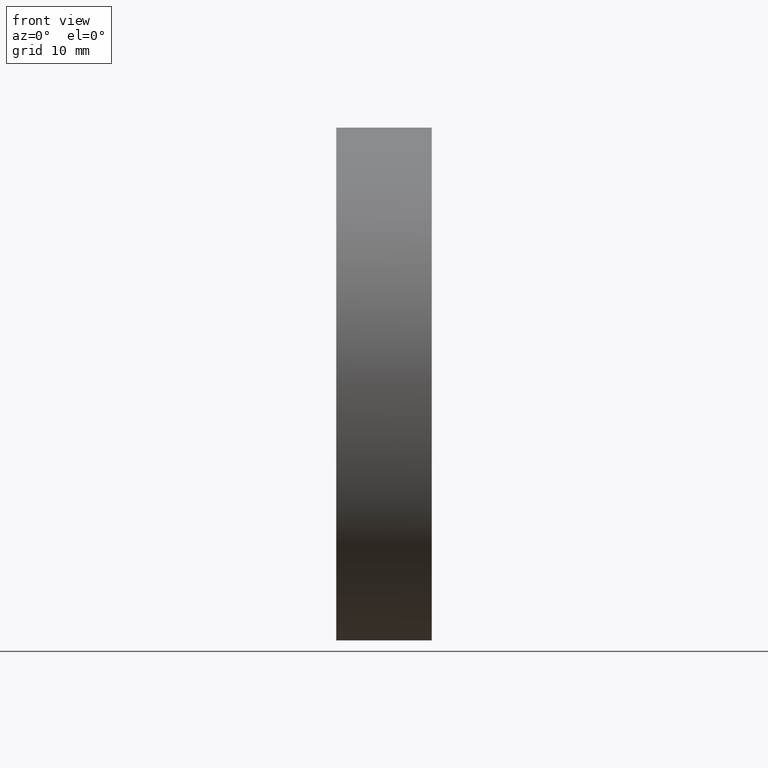
[diagram: clean part render]
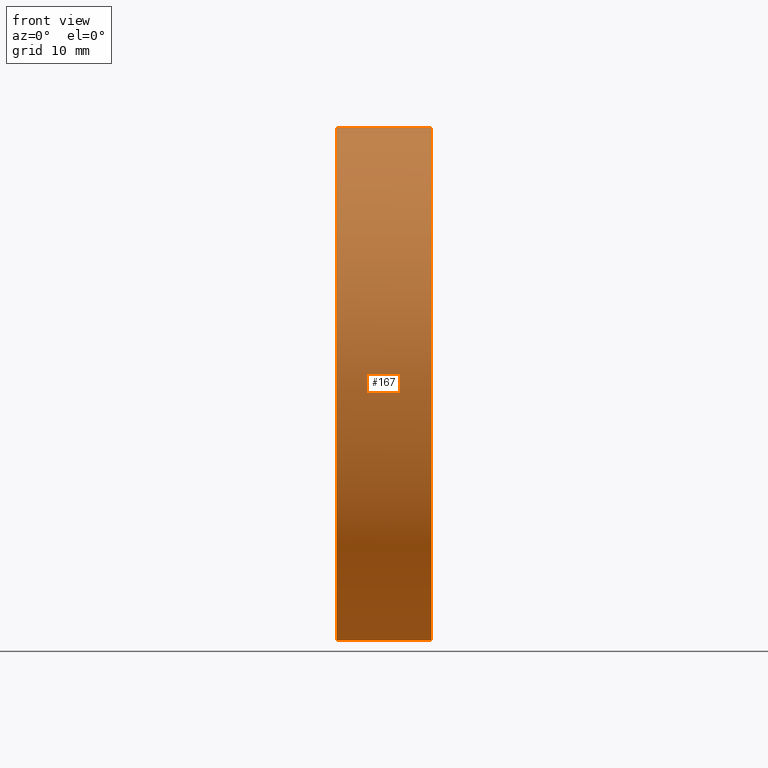
[diagram: same view with one face highlighted and labeled with its STEP entity id]
A machine part, front view. The second image highlights one B-rep face of the part: STEP entity #167.
In plain terms, the highlighted cylindrical surface (partial cylindrical patch) has radius 25 mm, axis along (-1, -0, -0).
Its self-contained STEP definition (entity closure, byte-faithful):
#6 = DIRECTION ( 'NONE',  ( 0.0000000000000000000, 0.0000000000000000000, 1.000000000000000000 ) ) ;
#8 = DIRECTION ( 'NONE',  ( -1.000000000000000000, -0.0000000000000000000, -0.0000000000000000000 ) ) ;
#10 = CARTESIAN_POINT ( 'NONE',  ( 230.1853110698390300, 138.7560422467448700, 0.0000000000000000000 ) ) ;
#12 = AXIS2_PLACEMENT_3D ( 'NONE', #10, #66, #128 ) ;
#14 = AXIS2_PLACEMENT_3D ( 'NONE', #182, #67, #76 ) ;
#26 = VECTOR ( 'NONE', #179, 1000.000000000000000 ) ;
#33 = CARTESIAN_POINT ( 'NONE',  ( 217.9702860043302100, 138.7560422467448700, 24.99999999999998200 ) ) ;
#39 = FACE_OUTER_BOUND ( 'NONE', #121, .T. ) ;
#50 = DIRECTION ( 'NONE',  ( -1.000000000000000000, -0.0000000000000000000, -0.0000000000000000000 ) ) ;
#54 = ORIENTED_EDGE ( 'NONE', *, *, #79, .F. ) ;
#55 = CARTESIAN_POINT ( 'NONE',  ( 217.9702860043302100, 138.7560422467448700, 0.0000000000000000000 ) ) ;
#57 = ORIENTED_EDGE ( 'NONE', *, *, #124, .T. ) ;
#59 = VERTEX_POINT ( 'NONE', #61 ) ;
#60 = CARTESIAN_POINT ( 'NONE',  ( 217.9702860043302100, 138.7560422467448700, -24.99999999999998200 ) ) ;
#61 = CARTESIAN_POINT ( 'NONE',  ( 239.4978588584929200, 138.7560422467448700, -24.99999999999996800 ) ) ;
#63 = AXIS2_PLACEMENT_3D ( 'NONE', #185, #50, #6 ) ;
#64 = CARTESIAN_POINT ( 'NONE',  ( 230.1853110698390300, 138.7560422467448700, -24.99999999999999600 ) ) ;
#66 = DIRECTION ( 'NONE',  ( -1.000000000000000000, -0.0000000000000000000, -0.0000000000000000000 ) ) ;
#67 = DIRECTION ( 'NONE',  ( -1.000000000000000000, -0.0000000000000000000, -0.0000000000000000000 ) ) ;
#76 = DIRECTION ( 'NONE',  ( 0.0000000000000000000, 0.0000000000000000000, 1.000000000000000000 ) ) ;
#79 = EDGE_CURVE ( 'NONE', #59, #110, #162, .T. ) ;
#82 = CIRCLE ( 'NONE', #63, 24.99999999999996800 ) ;
#86 = DIRECTION ( 'NONE',  ( 0.0000000000000000000, 0.0000000000000000000, 1.000000000000000000 ) ) ;
#99 = CARTESIAN_POINT ( 'NONE',  ( 239.4978588584929500, 113.7560422467429100, -3.061616997868377100E-015 ) ) ;
#101 = DIRECTION ( 'NONE',  ( -1.000000000000000000, -0.0000000000000000000, -0.0000000000000000000 ) ) ;
#102 = CIRCLE ( 'NONE', #14, 24.99999999999996800 ) ;
#105 = EDGE_CURVE ( 'NONE', #110, #153, #184, .T. ) ;
#110 = VERTEX_POINT ( 'NONE', #64 ) ;
#115 = VERTEX_POINT ( 'NONE', #155 ) ;
#117 = VECTOR ( 'NONE', #8, 1000.000000000000000 ) ;
#121 = EDGE_LOOP ( 'NONE', ( #54, #156, #129, #57, #172 ) ) ;
#124 = EDGE_CURVE ( 'NONE', #115, #153, #169, .T. ) ;
#128 = DIRECTION ( 'NONE',  ( 0.0000000000000000000, 0.0000000000000000000, 1.000000000000000000 ) ) ;
#129 = ORIENTED_EDGE ( 'NONE', *, *, #139, .T. ) ;
#130 = CARTESIAN_POINT ( 'NONE',  ( 230.1853110698390300, 138.7560422467448700, 24.99999999999999300 ) ) ;
#134 = CYLINDRICAL_SURFACE ( 'NONE', #143, 24.99999999999998200 ) ;
#139 = EDGE_CURVE ( 'NONE', #178, #115, #102, .T. ) ;
#143 = AXIS2_PLACEMENT_3D ( 'NONE', #55, #101, #86 ) ;
#153 = VERTEX_POINT ( 'NONE', #130 ) ;
#155 = CARTESIAN_POINT ( 'NONE',  ( 239.4978588584929200, 138.7560422467448700, 24.99999999999996800 ) ) ;
#156 = ORIENTED_EDGE ( 'NONE', *, *, #164, .T. ) ;
#162 = LINE ( 'NONE', #60, #26 ) ;
#164 = EDGE_CURVE ( 'NONE', #59, #178, #82, .T. ) ;
#167 = ADVANCED_FACE ( 'NONE', ( #39 ), #134, .T. ) ;
#169 = LINE ( 'NONE', #33, #117 ) ;
#172 = ORIENTED_EDGE ( 'NONE', *, *, #105, .F. ) ;
#178 = VERTEX_POINT ( 'NONE', #99 ) ;
#179 = DIRECTION ( 'NONE',  ( -1.000000000000000000, -0.0000000000000000000, -0.0000000000000000000 ) ) ;
#182 = CARTESIAN_POINT ( 'NONE',  ( 239.4978588584929200, 138.7560422467448700, 0.0000000000000000000 ) ) ;
#184 = CIRCLE ( 'NONE', #12, 24.99999999999999300 ) ;
#185 = CARTESIAN_POINT ( 'NONE',  ( 239.4978588584929200, 138.7560422467448700, 0.0000000000000000000 ) ) ;